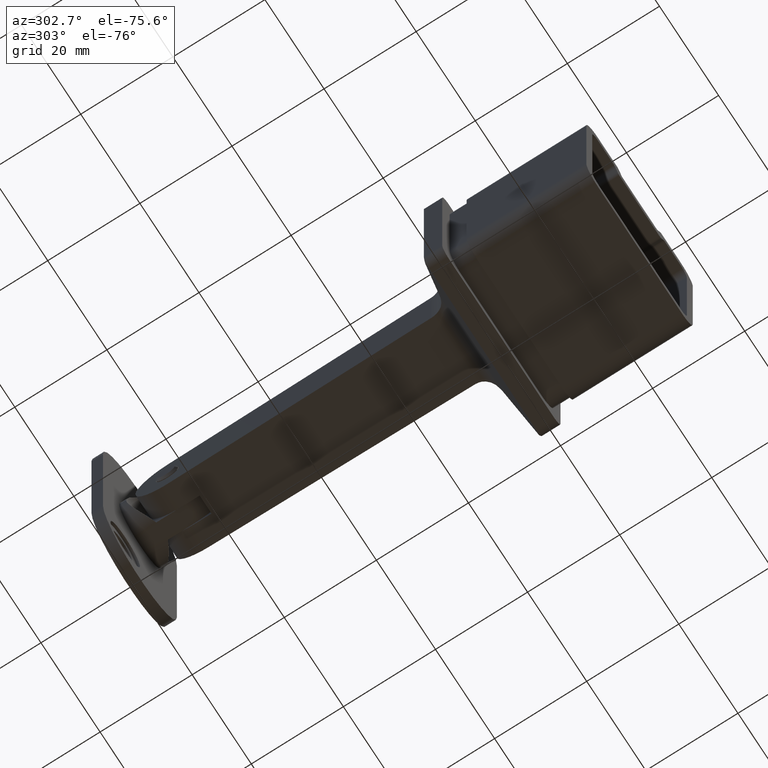
[diagram: clean part render]
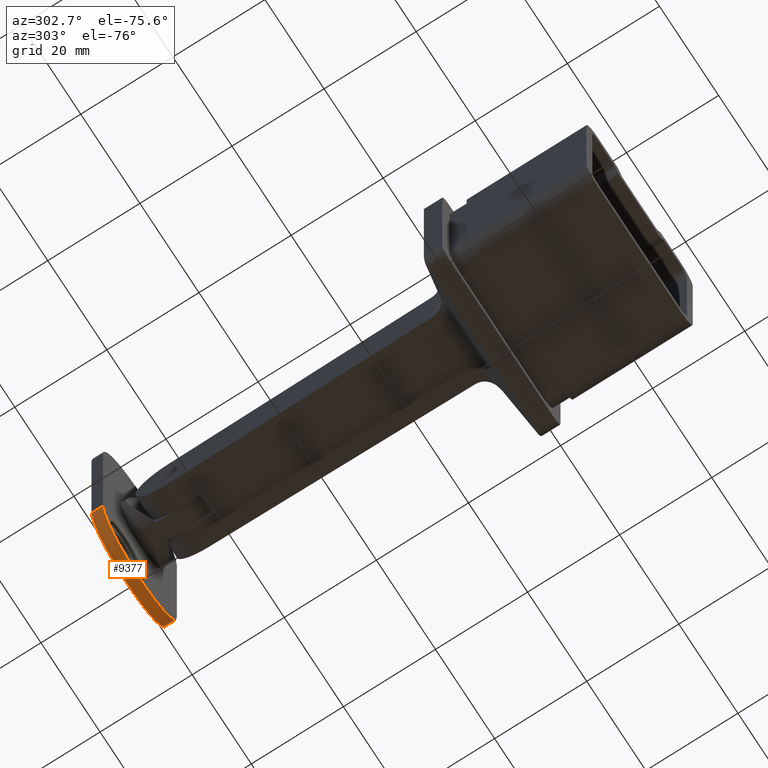
[diagram: same view with one face highlighted and labeled with its STEP entity id]
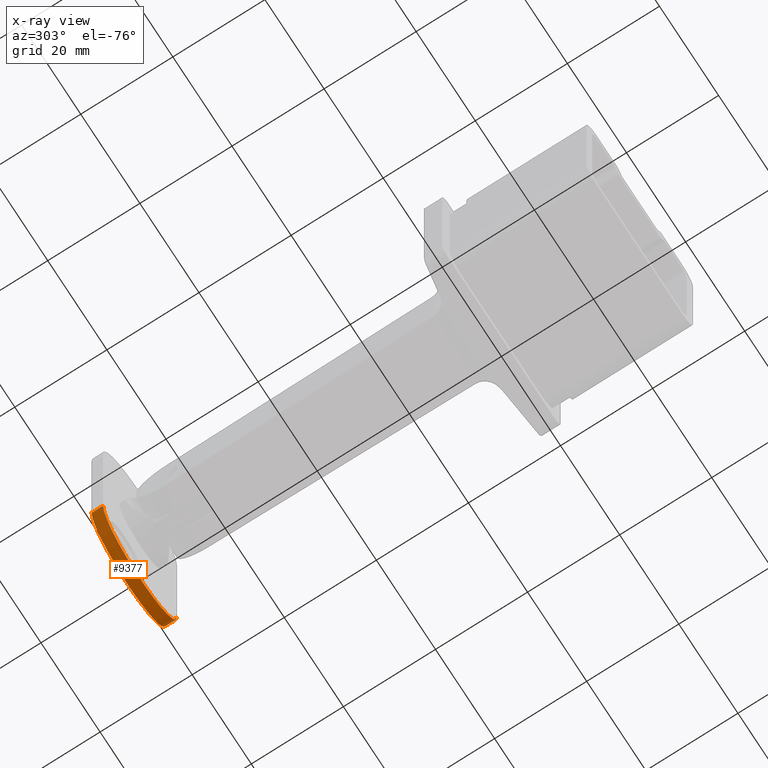
[diagram: x-ray of the same camera — body ghosted, the highlighted face saturated]
A machine part, auxiliary view. The second image highlights one B-rep face of the part: STEP entity #9377.
The next image is the same camera in x-ray: the body ghosted, the highlighted face saturated — about 0% of this face is hidden behind the body in this view.
In plain terms, the highlighted cylindrical surface (partial cylindrical patch) has radius 12.5 mm, axis along (-0, -1, -0).
Its self-contained STEP definition (entity closure, byte-faithful):
#969 = FACE_OUTER_BOUND ( 'NONE', #4313, .T. ) ;
#995 = EDGE_CURVE ( 'NONE', #13992, #3677, #14187, .T. ) ;
#1519 = AXIS2_PLACEMENT_3D ( 'NONE', #9795, #2522, #14609 ) ;
#2030 = VECTOR ( 'NONE', #4027, 1000.000000000000000 ) ;
#2495 = CARTESIAN_POINT ( 'NONE',  ( -12.49999999999999822, 2.500000000000002220, -19.00000000000000000 ) ) ;
#2522 = DIRECTION ( 'NONE',  ( 0.000000000000000000, 1.000000000000000000, 0.000000000000000000 ) ) ;
#2650 = ORIENTED_EDGE ( 'NONE', *, *, #995, .T. ) ;
#3677 = VERTEX_POINT ( 'NONE', #5332 ) ;
#3742 = VERTEX_POINT ( 'NONE', #2495 ) ;
#4027 = DIRECTION ( 'NONE',  ( -0.000000000000000000, -1.000000000000000000, -0.000000000000000000 ) ) ;
#4103 = DIRECTION ( 'NONE',  ( 0.000000000000000000, 1.000000000000000000, 0.000000000000000000 ) ) ;
#4313 = EDGE_LOOP ( 'NONE', ( #7843, #6373, #7244, #2650 ) ) ;
#4651 = AXIS2_PLACEMENT_3D ( 'NONE', #14912, #7704, #11918 ) ;
#4786 = LINE ( 'NONE', #14809, #11942 ) ;
#5012 = CARTESIAN_POINT ( 'NONE',  ( -12.49999999999999822, 0.000000000000000000, -19.00000000000000000 ) ) ;
#5169 = CYLINDRICAL_SURFACE ( 'NONE', #4651, 12.50000000000000000 ) ;
#5332 = CARTESIAN_POINT ( 'NONE',  ( 12.50000000000000178, 0.000000000000000000, -19.00000000000000000 ) ) ;
#6373 = ORIENTED_EDGE ( 'NONE', *, *, #9162, .F. ) ;
#6976 = EDGE_CURVE ( 'NONE', #13992, #3742, #14853, .T. ) ;
#7244 = ORIENTED_EDGE ( 'NONE', *, *, #6976, .F. ) ;
#7704 = DIRECTION ( 'NONE',  ( -0.000000000000000000, -1.000000000000000000, -0.000000000000000000 ) ) ;
#7732 = CARTESIAN_POINT ( 'NONE',  ( 12.50000000000000178, 2.500000000000002220, -19.00000000000000000 ) ) ;
#7843 = ORIENTED_EDGE ( 'NONE', *, *, #10898, .T. ) ;
#8252 = AXIS2_PLACEMENT_3D ( 'NONE', #11329, #4103, #12560 ) ;
#8669 = DIRECTION ( 'NONE',  ( -0.000000000000000000, -1.000000000000000000, -0.000000000000000000 ) ) ;
#9162 = EDGE_CURVE ( 'NONE', #3742, #12452, #4786, .T. ) ;
#9377 = ADVANCED_FACE ( 'NONE', ( #969 ), #5169, .T. ) ;
#9795 = CARTESIAN_POINT ( 'NONE',  ( 1.530808498934189746E-15, 0.000000000000000000, -19.00000000000000000 ) ) ;
#10326 = CIRCLE ( 'NONE', #1519, 12.50000000000000000 ) ;
#10898 = EDGE_CURVE ( 'NONE', #3677, #12452, #10326, .T. ) ;
#11329 = CARTESIAN_POINT ( 'NONE',  ( 1.530808498934189746E-15, 2.500000000000002220, -19.00000000000000000 ) ) ;
#11918 = DIRECTION ( 'NONE',  ( 0.000000000000000000, 0.000000000000000000, -1.000000000000000000 ) ) ;
#11942 = VECTOR ( 'NONE', #8669, 1000.000000000000000 ) ;
#12452 = VERTEX_POINT ( 'NONE', #5012 ) ;
#12560 = DIRECTION ( 'NONE',  ( 0.000000000000000000, 0.000000000000000000, 1.000000000000000000 ) ) ;
#13021 = CARTESIAN_POINT ( 'NONE',  ( 12.50000000000000178, 2.500000000000002220, -19.00000000000000000 ) ) ;
#13992 = VERTEX_POINT ( 'NONE', #13021 ) ;
#14187 = LINE ( 'NONE', #7732, #2030 ) ;
#14609 = DIRECTION ( 'NONE',  ( 0.000000000000000000, 0.000000000000000000, 1.000000000000000000 ) ) ;
#14809 = CARTESIAN_POINT ( 'NONE',  ( -12.49999999999999822, 2.500000000000002220, -19.00000000000000000 ) ) ;
#14853 = CIRCLE ( 'NONE', #8252, 12.50000000000000000 ) ;
#14912 = CARTESIAN_POINT ( 'NONE',  ( 1.530808498934189746E-15, 2.500000000000002220, -19.00000000000000000 ) ) ;